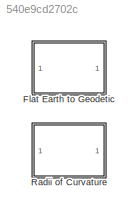
MODEL slx_540e9cd2702c
KIND library
CONFIG AbsTol = auto
CONFIG EnableMultiTasking = on
CONFIG FixedStep = auto
CONFIG MaxStep = auto
CONFIG MinStep = auto
CONFIG RelTol = 1e-3
CONFIG SampleTimeConstraint = Unconstrained
CONFIG SolverName = ode45
CONFIG StartTime = 0.0
CONFIG StopTime = 10.0
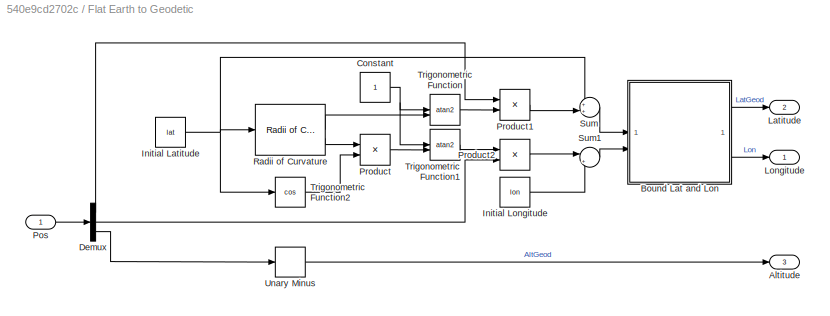
BLOCK [SubSystem] Flat Earth to Geodetic
BLOCK [Outport] Flat Earth to Geodetic/Altitude
  Port = 3
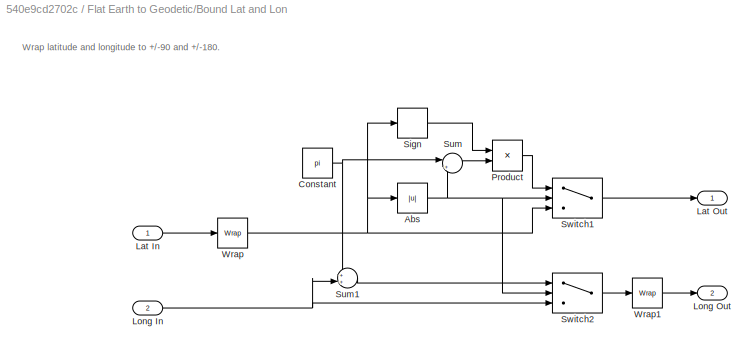
BLOCK [SubSystem] Flat Earth to Geodetic/Bound Lat and Lon
BLOCK [Abs] Flat Earth to Geodetic/Bound Lat and Lon/Abs
  SaturateOnIntegerOverflow = off
BLOCK [Constant] Flat Earth to Geodetic/Bound Lat and Lon/Constant
  Value = pi
BLOCK [Inport] Flat Earth to Geodetic/Bound Lat and Lon/Lat In
BLOCK [Outport] Flat Earth to Geodetic/Bound Lat and Lon/Lat Out
BLOCK [Inport] Flat Earth to Geodetic/Bound Lat and Lon/Long In
  Port = 2
BLOCK [Outport] Flat Earth to Geodetic/Bound Lat and Lon/Long Out
  Port = 2
BLOCK [Product] Flat Earth to Geodetic/Bound Lat and Lon/Product
  RndMeth = Zero
BLOCK [Signum] Flat Earth to Geodetic/Bound Lat and Lon/Sign
BLOCK [Sum] Flat Earth to Geodetic/Bound Lat and Lon/Sum
  Inputs = |+-
BLOCK [Sum] Flat Earth to Geodetic/Bound Lat and Lon/Sum1
  Inputs = ++|
BLOCK [Switch] Flat Earth to Geodetic/Bound Lat and Lon/Switch1
  Criteria = u2 > Threshold
  InputSameDT = off
  SaturateOnIntegerOverflow = off
  Threshold = pi/2
BLOCK [Switch] Flat Earth to Geodetic/Bound Lat and Lon/Switch2
  Criteria = u2 > Threshold
  InputSameDT = off
  SaturateOnIntegerOverflow = off
  Threshold = pi/2
BLOCK [Reference] Flat Earth to Geodetic/Bound Lat and Lon/Wrap  REF=libMathOperations/Wrap
  SourceBlock = libMathOperations/Wrap
  SourceType = Wrap Input
BLOCK [Reference] Flat Earth to Geodetic/Bound Lat and Lon/Wrap1  REF=libMathOperations/Wrap
  SourceBlock = libMathOperations/Wrap
  SourceType = Wrap Input
BLOCK [Constant] Flat Earth to Geodetic/Constant
BLOCK [Demux] Flat Earth to Geodetic/Demux
  Outputs = 3
BLOCK [Constant] Flat Earth to Geodetic/Initial Latitude
  Value = lat
BLOCK [Constant] Flat Earth to Geodetic/Initial Longitude
  Value = lon
BLOCK [Outport] Flat Earth to Geodetic/Latitude
  Port = 2
BLOCK [Outport] Flat Earth to Geodetic/Longitude
BLOCK [Inport] Flat Earth to Geodetic/Pos
BLOCK [Product] Flat Earth to Geodetic/Product
  RndMeth = Zero
BLOCK [Product] Flat Earth to Geodetic/Product1
  RndMeth = Zero
BLOCK [Product] Flat Earth to Geodetic/Product2
  RndMeth = Zero
BLOCK [Reference] Flat Earth to Geodetic/Radii of Curvature  REF=$bdroot/Radii of Curvature
  SourceBlock = $bdroot/Radii of Curvature
  SourceType = Radii of Curvature
BLOCK [Sum] Flat Earth to Geodetic/Sum
  Inputs = ++|
BLOCK [Sum] Flat Earth to Geodetic/Sum1
  Inputs = |++
BLOCK [Trigonometry] Flat Earth to Geodetic/Trigonometric Function
  Operator = atan2
BLOCK [Trigonometry] Flat Earth to Geodetic/Trigonometric Function1
  Operator = atan2
BLOCK [Trigonometry] Flat Earth to Geodetic/Trigonometric Function2
  Operator = cos
BLOCK [UnaryMinus] Flat Earth to Geodetic/Unary Minus
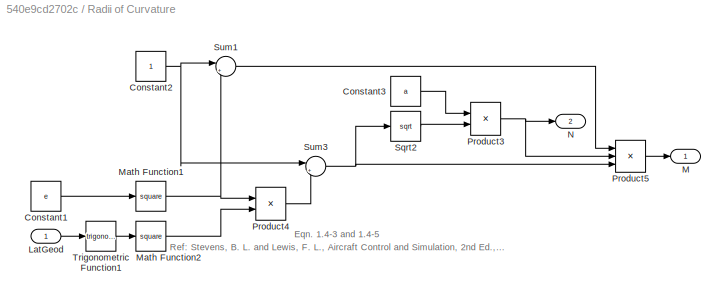
BLOCK [SubSystem] Radii of Curvature
BLOCK [Constant] Radii of Curvature/Constant1
  Value = e
BLOCK [Constant] Radii of Curvature/Constant2
BLOCK [Constant] Radii of Curvature/Constant3
  Value = a
BLOCK [Inport] Radii of Curvature/LatGeod
BLOCK [Outport] Radii of Curvature/M
BLOCK [Math] Radii of Curvature/Math Function1
  Operator = square
  SignedPower = on
BLOCK [Math] Radii of Curvature/Math Function2
  Operator = square
  SignedPower = on
BLOCK [Outport] Radii of Curvature/N
  Port = 2
BLOCK [Product] Radii of Curvature/Product3
  Inputs = */
  RndMeth = Zero
BLOCK [Product] Radii of Curvature/Product4
  RndMeth = Zero
BLOCK [Product] Radii of Curvature/Product5
  Inputs = **/
  RndMeth = Zero
BLOCK [Sqrt] Radii of Curvature/Sqrt2
BLOCK [Sum] Radii of Curvature/Sum1
  Inputs = |+-
BLOCK [Sum] Radii of Curvature/Sum3
  Inputs = |+-
BLOCK [Trigonometry] Radii of Curvature/Trigonometric Function1
ANNOTATION Flat Earth to Geodetic/Bound Lat and Lon: Wrap latitude and longitude to +/-90 and +/-180.
ANNOTATION Radii of Curvature: Ref: Stevens, B. L. and Lewis, F. L., Aircraft Control and Simulation, 2nd Ed., 2003 Eqn. 1.4-3 and 1.4-5
NET Flat Earth to Geodetic/Bound Lat and Lon/Abs:1 -> Flat Earth to Geodetic/Bound Lat and Lon/Sum:2, Flat Earth to Geodetic/Bound Lat and Lon/Switch1:2, Flat Earth to Geodetic/Bound Lat and Lon/Switch2:2
NET Flat Earth to Geodetic/Bound Lat and Lon/Constant:1 -> Flat Earth to Geodetic/Bound Lat and Lon/Sum1:1, Flat Earth to Geodetic/Bound Lat and Lon/Sum:1
LINE Flat Earth to Geodetic/Bound Lat and Lon/Lat In:1 -> Flat Earth to Geodetic/Bound Lat and Lon/Wrap:1
NET Flat Earth to Geodetic/Bound Lat and Lon/Long In:1 -> Flat Earth to Geodetic/Bound Lat and Lon/Sum1:2, Flat Earth to Geodetic/Bound Lat and Lon/Switch2:3
LINE Flat Earth to Geodetic/Bound Lat and Lon/Product:1 -> Flat Earth to Geodetic/Bound Lat and Lon/Switch1:1
LINE Flat Earth to Geodetic/Bound Lat and Lon/Sign:1 -> Flat Earth to Geodetic/Bound Lat and Lon/Product:1
LINE Flat Earth to Geodetic/Bound Lat and Lon/Sum1:1 -> Flat Earth to Geodetic/Bound Lat and Lon/Switch2:1
LINE Flat Earth to Geodetic/Bound Lat and Lon/Sum:1 -> Flat Earth to Geodetic/Bound Lat and Lon/Product:2
LINE Flat Earth to Geodetic/Bound Lat and Lon/Switch1:1 -> Flat Earth to Geodetic/Bound Lat and Lon/Lat Out:1
LINE Flat Earth to Geodetic/Bound Lat and Lon/Switch2:1 -> Flat Earth to Geodetic/Bound Lat and Lon/Wrap1:1
LINE Flat Earth to Geodetic/Bound Lat and Lon/Wrap1:1 -> Flat Earth to Geodetic/Bound Lat and Lon/Long Out:1
NET Flat Earth to Geodetic/Bound Lat and Lon/Wrap:1 -> Flat Earth to Geodetic/Bound Lat and Lon/Abs:1, Flat Earth to Geodetic/Bound Lat and Lon/Sign:1, Flat Earth to Geodetic/Bound Lat and Lon/Switch1:3
LINE Flat Earth to Geodetic/Bound Lat and Lon:1 -> Flat Earth to Geodetic/Latitude:1
LINE Flat Earth to Geodetic/Bound Lat and Lon:2 -> Flat Earth to Geodetic/Longitude:1
NET Flat Earth to Geodetic/Constant:1 -> Flat Earth to Geodetic/Trigonometric Function1:1, Flat Earth to Geodetic/Trigonometric Function:1
LINE Flat Earth to Geodetic/Demux:1 -> Flat Earth to Geodetic/Product1:1
LINE Flat Earth to Geodetic/Demux:2 -> Flat Earth to Geodetic/Product2:2
LINE Flat Earth to Geodetic/Demux:3 -> Flat Earth to Geodetic/Unary Minus:1
NET Flat Earth to Geodetic/Initial Latitude:1 -> Flat Earth to Geodetic/Radii of Curvature:1, Flat Earth to Geodetic/Sum:1, Flat Earth to Geodetic/Trigonometric Function2:1
LINE Flat Earth to Geodetic/Initial Longitude:1 -> Flat Earth to Geodetic/Sum1:2
LINE Flat Earth to Geodetic/Pos:1 -> Flat Earth to Geodetic/Demux:1
LINE Flat Earth to Geodetic/Product1:1 -> Flat Earth to Geodetic/Sum:2
LINE Flat Earth to Geodetic/Product2:1 -> Flat Earth to Geodetic/Sum1:1
LINE Flat Earth to Geodetic/Product:1 -> Flat Earth to Geodetic/Trigonometric Function1:2
LINE Flat Earth to Geodetic/Radii of Curvature:1 -> Flat Earth to Geodetic/Trigonometric Function:2
LINE Flat Earth to Geodetic/Radii of Curvature:2 -> Flat Earth to Geodetic/Product:1
LINE Flat Earth to Geodetic/Sum1:1 -> Flat Earth to Geodetic/Bound Lat and Lon:2
LINE Flat Earth to Geodetic/Sum:1 -> Flat Earth to Geodetic/Bound Lat and Lon:1
LINE Flat Earth to Geodetic/Trigonometric Function1:1 -> Flat Earth to Geodetic/Product2:1
LINE Flat Earth to Geodetic/Trigonometric Function2:1 -> Flat Earth to Geodetic/Product:2
LINE Flat Earth to Geodetic/Trigonometric Function:1 -> Flat Earth to Geodetic/Product1:2
LINE Flat Earth to Geodetic/Unary Minus:1 -> Flat Earth to Geodetic/Altitude:1
LINE Radii of Curvature/Constant1:1 -> Radii of Curvature/Math Function1:1
NET Radii of Curvature/Constant2:1 -> Radii of Curvature/Sum1:1, Radii of Curvature/Sum3:1
LINE Radii of Curvature/Constant3:1 -> Radii of Curvature/Product3:1
LINE Radii of Curvature/LatGeod:1 -> Radii of Curvature/Trigonometric Function1:1
NET Radii of Curvature/Math Function1:1 -> Radii of Curvature/Product4:1, Radii of Curvature/Sum1:2
LINE Radii of Curvature/Math Function2:1 -> Radii of Curvature/Product4:2
NET Radii of Curvature/Product3:1 -> Radii of Curvature/N:1, Radii of Curvature/Product5:2
LINE Radii of Curvature/Product4:1 -> Radii of Curvature/Sum3:2
LINE Radii of Curvature/Product5:1 -> Radii of Curvature/M:1
LINE Radii of Curvature/Sqrt2:1 -> Radii of Curvature/Product3:2
LINE Radii of Curvature/Sum1:1 -> Radii of Curvature/Product5:1
NET Radii of Curvature/Sum3:1 -> Radii of Curvature/Product5:3, Radii of Curvature/Sqrt2:1
LINE Radii of Curvature/Trigonometric Function1:1 -> Radii of Curvature/Math Function2:1
note: NET lines group one-source signal fan-out (src -> all destinations, sorted); 1:1 wires keep LINE
